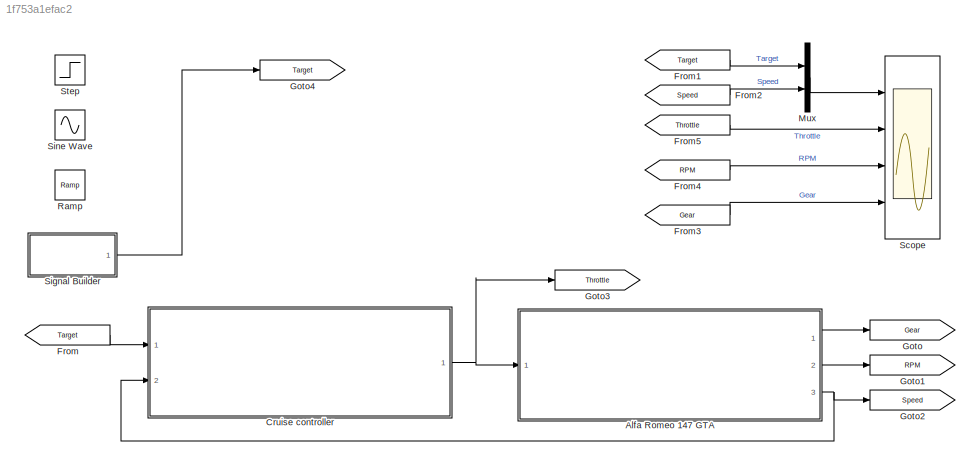
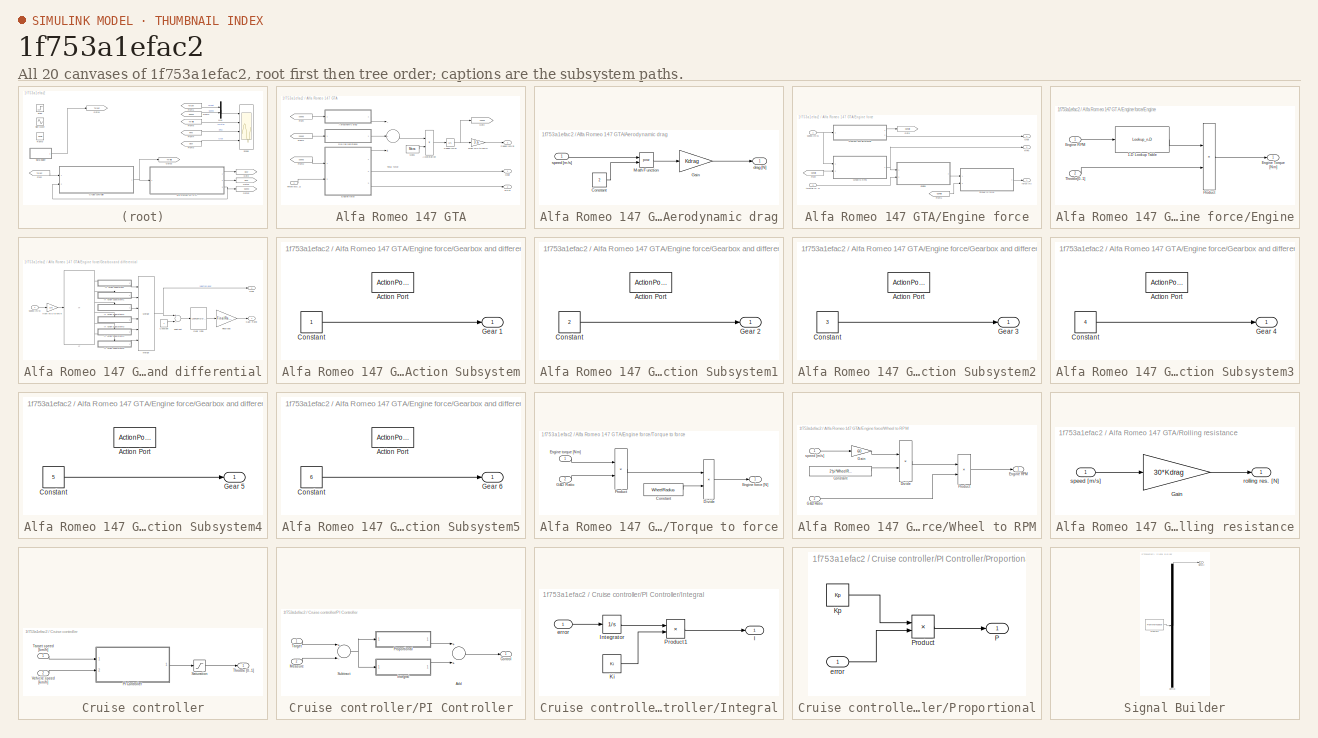
[diagram: thumbnail index - all 20 canvases of the model, root first then tree order]
MODEL slx_1f753a1efac2
KIND model
CONFIG PreLoadFcn = load('cruise_control_sim.mat')
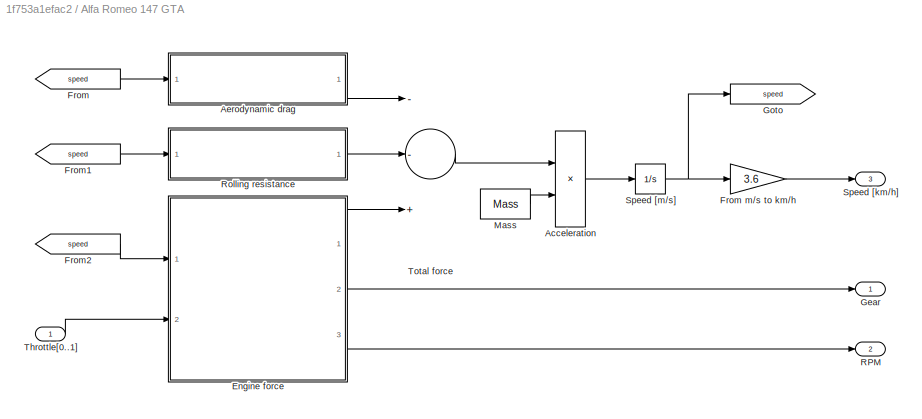
BLOCK [SubSystem] Alfa Romeo 147 GTA
  FunctionWithSeparateData = off
  MaskHideContents = off
  MinAlgLoopOccurrences = off
  Opaque = off
  Ports = [1, 3]
  PropExecContextOutsideSubsystem = off
  RTWSystemCode = Auto
  RequestExecContextInheritance = off
BLOCK [Product] Alfa Romeo 147 GTA/Acceleration
  InputSameDT = off
  Inputs = */
  OutDataTypeStr = Inherit: Inherit via internal rule
  Ports = [2, 1]
  RndMeth = Floor
  SaturateOnIntegerOverflow = off
BLOCK [SubSystem] Alfa Romeo 147 GTA/Aerodynamic drag
  FunctionWithSeparateData = off
  MaskHideContents = off
  MinAlgLoopOccurrences = off
  Opaque = off
  Ports = [1, 1]
  PropExecContextOutsideSubsystem = off
  RTWSystemCode = Auto
  RequestExecContextInheritance = off
BLOCK [Constant] Alfa Romeo 147 GTA/Aerodynamic drag/Constant
  Value = 2
BLOCK [Gain] Alfa Romeo 147 GTA/Aerodynamic drag/Gain
  Gain = Kdrag
  OutDataTypeStr = Inherit: Inherit via internal rule
  ParamDataTypeStr = Inherit: Inherit via internal rule
  SaturateOnIntegerOverflow = off
BLOCK [Math] Alfa Romeo 147 GTA/Aerodynamic drag/Math Function
  Operator = pow
  Ports = [2, 1]
BLOCK [Outport] Alfa Romeo 147 GTA/Aerodynamic drag/drag [N]
  IconDisplay = Port number
BLOCK [Inport] Alfa Romeo 147 GTA/Aerodynamic drag/speed [m//s]
  IconDisplay = Port number
BLOCK [SubSystem] Alfa Romeo 147 GTA/Engine force
  FunctionWithSeparateData = off
  MaskHideContents = off
  MinAlgLoopOccurrences = off
  Opaque = off
  Ports = [2, 3]
  PropExecContextOutsideSubsystem = off
  RTWSystemCode = Auto
  RequestExecContextInheritance = off
BLOCK [SubSystem] Alfa Romeo 147 GTA/Engine force/Engine
  FunctionWithSeparateData = off
  MaskHideContents = off
  MinAlgLoopOccurrences = off
  Opaque = off
  Ports = [2, 1]
  PropExecContextOutsideSubsystem = off
  RTWSystemCode = Auto
  RequestExecContextInheritance = off
BLOCK [Lookup_n-D] Alfa Romeo 147 GTA/Engine force/Engine/1-D Lookup Table
  BreakpointsForDimension1 = EngineRPM
  InterpMethod = Cubic spline
  NumberOfTableDimensions = 1
  Ports = [1, 1]
  RndMeth = Simplest
  Table = EngineTRQ
BLOCK [Inport] Alfa Romeo 147 GTA/Engine force/Engine/Engine RPM
  IconDisplay = Port number
BLOCK [Outport] Alfa Romeo 147 GTA/Engine force/Engine/Engine Torque [Nm]
  IconDisplay = Port number
BLOCK [Product] Alfa Romeo 147 GTA/Engine force/Engine/Product
  InputSameDT = off
  OutDataTypeStr = Inherit: Inherit via internal rule
  Ports = [2, 1]
  RndMeth = Floor
  SaturateOnIntegerOverflow = off
BLOCK [Inport] Alfa Romeo 147 GTA/Engine force/Engine/Throttle[0..1]
  IconDisplay = Port number
  Port = 2
BLOCK [From] Alfa Romeo 147 GTA/Engine force/From
  GotoTag = GDRatio
BLOCK [From] Alfa Romeo 147 GTA/Engine force/From1
  GotoTag = GDRatio
BLOCK [Outport] Alfa Romeo 147 GTA/Engine force/Gear
  IconDisplay = Port number
  Port = 2
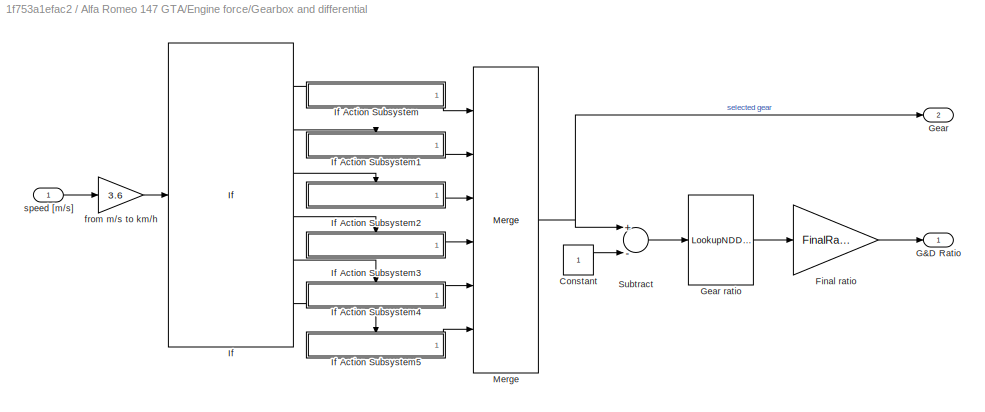
BLOCK [SubSystem] Alfa Romeo 147 GTA/Engine force/Gearbox and differential
  FunctionWithSeparateData = off
  MaskHideContents = off
  MinAlgLoopOccurrences = off
  Opaque = off
  Ports = [1, 2]
  PropExecContextOutsideSubsystem = off
  RTWSystemCode = Auto
  RequestExecContextInheritance = off
BLOCK [Constant] Alfa Romeo 147 GTA/Engine force/Gearbox and differential/Constant
BLOCK [Gain] Alfa Romeo 147 GTA/Engine force/Gearbox and differential/Final ratio
  Gain = FinalRatio
  OutDataTypeStr = Inherit: Inherit via internal rule
  ParamDataTypeStr = Inherit: Inherit via internal rule
  SaturateOnIntegerOverflow = off
BLOCK [Outport] Alfa Romeo 147 GTA/Engine force/Gearbox and differential/G&D Ratio
  IconDisplay = Port number
BLOCK [Outport] Alfa Romeo 147 GTA/Engine force/Gearbox and differential/Gear
  IconDisplay = Port number
  Port = 2
BLOCK [LookupNDDirect] Alfa Romeo 147 GTA/Engine force/Gearbox and differential/Gear ratio
  NumberOfTableDimensions = 1
  Ports = [1, 1]
  Table = GearRatio
BLOCK [If] Alfa Romeo 147 GTA/Engine force/Gearbox and differential/If
  ElseIfExpressions = u1 < 60, u1 < 86, u1 < 110, u1 < 130
  IfExpression = u1 < 39
  Ports = [1, 6]
BLOCK [SubSystem] Alfa Romeo 147 GTA/Engine force/Gearbox and differential/If Action Subsystem
  FunctionWithSeparateData = off
  MaskHideContents = off
  MinAlgLoopOccurrences = off
  Opaque = off
  Ports = [0, 1, 0, 0, 0, 0, 0, 1]
  PropExecContextOutsideSubsystem = off
  RTWSystemCode = Auto
  RequestExecContextInheritance = off
  TreatAsAtomicUnit = on
BLOCK [ActionPort] Alfa Romeo 147 GTA/Engine force/Gearbox and differential/If Action Subsystem/Action Port
  ActionType = then
BLOCK [Constant] Alfa Romeo 147 GTA/Engine force/Gearbox and differential/If Action Subsystem/Constant
BLOCK [Outport] Alfa Romeo 147 GTA/Engine force/Gearbox and differential/If Action Subsystem/Gear 1
  IconDisplay = Port number
  InitialOutput = 1
BLOCK [SubSystem] Alfa Romeo 147 GTA/Engine force/Gearbox and differential/If Action Subsystem1
  FunctionWithSeparateData = off
  MaskHideContents = off
  MinAlgLoopOccurrences = off
  Opaque = off
  Ports = [0, 1, 0, 0, 0, 0, 0, 1]
  PropExecContextOutsideSubsystem = off
  RTWSystemCode = Auto
  RequestExecContextInheritance = off
  TreatAsAtomicUnit = on
BLOCK [ActionPort] Alfa Romeo 147 GTA/Engine force/Gearbox and differential/If Action Subsystem1/Action Port
  ActionType = elseif
BLOCK [Constant] Alfa Romeo 147 GTA/Engine force/Gearbox and differential/If Action Subsystem1/Constant
  Value = 2
BLOCK [Outport] Alfa Romeo 147 GTA/Engine force/Gearbox and differential/If Action Subsystem1/Gear 2
  IconDisplay = Port number
  InitialOutput = 2
BLOCK [SubSystem] Alfa Romeo 147 GTA/Engine force/Gearbox and differential/If Action Subsystem2
  FunctionWithSeparateData = off
  MaskHideContents = off
  MinAlgLoopOccurrences = off
  Opaque = off
  Ports = [0, 1, 0, 0, 0, 0, 0, 1]
  PropExecContextOutsideSubsystem = off
  RTWSystemCode = Auto
  RequestExecContextInheritance = off
  TreatAsAtomicUnit = on
BLOCK [ActionPort] Alfa Romeo 147 GTA/Engine force/Gearbox and differential/If Action Subsystem2/Action Port
  ActionType = elseif
BLOCK [Constant] Alfa Romeo 147 GTA/Engine force/Gearbox and differential/If Action Subsystem2/Constant
  Value = 3
BLOCK [Outport] Alfa Romeo 147 GTA/Engine force/Gearbox and differential/If Action Subsystem2/Gear 3
  IconDisplay = Port number
  InitialOutput = 3
BLOCK [SubSystem] Alfa Romeo 147 GTA/Engine force/Gearbox and differential/If Action Subsystem3
  FunctionWithSeparateData = off
  MaskHideContents = off
  MinAlgLoopOccurrences = off
  Opaque = off
  Ports = [0, 1, 0, 0, 0, 0, 0, 1]
  PropExecContextOutsideSubsystem = off
  RTWSystemCode = Auto
  RequestExecContextInheritance = off
  TreatAsAtomicUnit = on
BLOCK [ActionPort] Alfa Romeo 147 GTA/Engine force/Gearbox and differential/If Action Subsystem3/Action Port
  ActionType = elseif
BLOCK [Constant] Alfa Romeo 147 GTA/Engine force/Gearbox and differential/If Action Subsystem3/Constant
  Value = 4
BLOCK [Outport] Alfa Romeo 147 GTA/Engine force/Gearbox and differential/If Action Subsystem3/Gear 4
  IconDisplay = Port number
  InitialOutput = 4
BLOCK [SubSystem] Alfa Romeo 147 GTA/Engine force/Gearbox and differential/If Action Subsystem4
  FunctionWithSeparateData = off
  MaskHideContents = off
  MinAlgLoopOccurrences = off
  Opaque = off
  Ports = [0, 1, 0, 0, 0, 0, 0, 1]
  PropExecContextOutsideSubsystem = off
  RTWSystemCode = Auto
  RequestExecContextInheritance = off
  TreatAsAtomicUnit = on
BLOCK [ActionPort] Alfa Romeo 147 GTA/Engine force/Gearbox and differential/If Action Subsystem4/Action Port
  ActionType = elseif
BLOCK [Constant] Alfa Romeo 147 GTA/Engine force/Gearbox and differential/If Action Subsystem4/Constant
  Value = 5
BLOCK [Outport] Alfa Romeo 147 GTA/Engine force/Gearbox and differential/If Action Subsystem4/Gear 5
  IconDisplay = Port number
  InitialOutput = 5
BLOCK [SubSystem] Alfa Romeo 147 GTA/Engine force/Gearbox and differential/If Action Subsystem5
  FunctionWithSeparateData = off
  MaskHideContents = off
  MinAlgLoopOccurrences = off
  Opaque = off
  Ports = [0, 1, 0, 0, 0, 0, 0, 1]
  PropExecContextOutsideSubsystem = off
  RTWSystemCode = Auto
  RequestExecContextInheritance = off
  TreatAsAtomicUnit = on
BLOCK [ActionPort] Alfa Romeo 147 GTA/Engine force/Gearbox and differential/If Action Subsystem5/Action Port
  ActionType = else
BLOCK [Constant] Alfa Romeo 147 GTA/Engine force/Gearbox and differential/If Action Subsystem5/Constant
  Value = 6
BLOCK [Outport] Alfa Romeo 147 GTA/Engine force/Gearbox and differential/If Action Subsystem5/Gear 6
  IconDisplay = Port number
  InitialOutput = 6
BLOCK [Merge] Alfa Romeo 147 GTA/Engine force/Gearbox and differential/Merge
  Inputs = 6
  Ports = [6, 1]
BLOCK [Sum] Alfa Romeo 147 GTA/Engine force/Gearbox and differential/Subtract
  InputSameDT = off
  Inputs = +-
  OutDataTypeStr = Inherit: Inherit via internal rule
  Ports = [2, 1]
  SaturateOnIntegerOverflow = off
BLOCK [Gain] Alfa Romeo 147 GTA/Engine force/Gearbox and differential/from m//s to km//h
  Gain = 3.6
  OutDataTypeStr = Inherit: Inherit via internal rule
  ParamDataTypeStr = Inherit: Inherit via internal rule
  SaturateOnIntegerOverflow = off
BLOCK [Inport] Alfa Romeo 147 GTA/Engine force/Gearbox and differential/speed [m//s]
  IconDisplay = Port number
BLOCK [Goto] Alfa Romeo 147 GTA/Engine force/Goto
  GotoTag = GDRatio
BLOCK [Outport] Alfa Romeo 147 GTA/Engine force/RPM
  IconDisplay = Port number
  Port = 3
BLOCK [SubSystem] Alfa Romeo 147 GTA/Engine force/Torque to force
  FunctionWithSeparateData = off
  MaskHideContents = off
  MinAlgLoopOccurrences = off
  Opaque = off
  Ports = [2, 1]
  PropExecContextOutsideSubsystem = off
  RTWSystemCode = Auto
  RequestExecContextInheritance = off
BLOCK [Constant] Alfa Romeo 147 GTA/Engine force/Torque to force/Constant
  Value = WheelRadius
BLOCK [Product] Alfa Romeo 147 GTA/Engine force/Torque to force/Divide
  InputSameDT = off
  Inputs = */
  OutDataTypeStr = Inherit: Inherit via internal rule
  Ports = [2, 1]
  RndMeth = Floor
  SaturateOnIntegerOverflow = off
BLOCK [Outport] Alfa Romeo 147 GTA/Engine force/Torque to force/Engine force [N]
  IconDisplay = Port number
BLOCK [Inport] Alfa Romeo 147 GTA/Engine force/Torque to force/Engine torque [Nm]
  IconDisplay = Port number
BLOCK [Inport] Alfa Romeo 147 GTA/Engine force/Torque to force/G&D Ratio
  IconDisplay = Port number
  Port = 2
BLOCK [Product] Alfa Romeo 147 GTA/Engine force/Torque to force/Product
  InputSameDT = off
  OutDataTypeStr = Inherit: Inherit via internal rule
  Ports = [2, 1]
  RndMeth = Floor
  SaturateOnIntegerOverflow = off
BLOCK [SubSystem] Alfa Romeo 147 GTA/Engine force/Wheel to RPM
  FunctionWithSeparateData = off
  MaskHideContents = off
  MinAlgLoopOccurrences = off
  Opaque = off
  Ports = [2, 1]
  PropExecContextOutsideSubsystem = off
  RTWSystemCode = Auto
  RequestExecContextInheritance = off
BLOCK [Constant] Alfa Romeo 147 GTA/Engine force/Wheel to RPM/Constant
  Value = 2*pi*WheelRadius
BLOCK [Product] Alfa Romeo 147 GTA/Engine force/Wheel to RPM/Divide
  InputSameDT = off
  Inputs = */
  OutDataTypeStr = Inherit: Inherit via internal rule
  Ports = [2, 1]
  RndMeth = Floor
  SaturateOnIntegerOverflow = off
BLOCK [Outport] Alfa Romeo 147 GTA/Engine force/Wheel to RPM/Engine RPM
  IconDisplay = Port number
BLOCK [Inport] Alfa Romeo 147 GTA/Engine force/Wheel to RPM/G&D Ratio
  IconDisplay = Port number
  Port = 2
BLOCK [Gain] Alfa Romeo 147 GTA/Engine force/Wheel to RPM/Gain
  Gain = 60
  OutDataTypeStr = Inherit: Inherit via internal rule
  ParamDataTypeStr = Inherit: Inherit via internal rule
  SaturateOnIntegerOverflow = off
BLOCK [Product] Alfa Romeo 147 GTA/Engine force/Wheel to RPM/Product
  InputSameDT = off
  OutDataTypeStr = Inherit: Inherit via internal rule
  Ports = [2, 1]
  RndMeth = Floor
  SaturateOnIntegerOverflow = off
BLOCK [Inport] Alfa Romeo 147 GTA/Engine force/Wheel to RPM/speed [m//s]
  IconDisplay = Port number
BLOCK [Outport] Alfa Romeo 147 GTA/Engine force/force [N]
  IconDisplay = Port number
BLOCK [Inport] Alfa Romeo 147 GTA/Engine force/speed [m//s]
  IconDisplay = Port number
BLOCK [Inport] Alfa Romeo 147 GTA/Engine force/throttle [0..1]
  IconDisplay = Port number
  Port = 2
BLOCK [From] Alfa Romeo 147 GTA/From
  GotoTag = speed
BLOCK [Gain] Alfa Romeo 147 GTA/From m//s to km//h
  Gain = 3.6
  OutDataTypeStr = Inherit: Inherit via internal rule
  ParamDataTypeStr = Inherit: Inherit via internal rule
  SaturateOnIntegerOverflow = off
BLOCK [From] Alfa Romeo 147 GTA/From1
  GotoTag = speed
BLOCK [From] Alfa Romeo 147 GTA/From2
  GotoTag = speed
BLOCK [Outport] Alfa Romeo 147 GTA/Gear
  IconDisplay = Port number
BLOCK [Goto] Alfa Romeo 147 GTA/Goto
  GotoTag = speed
BLOCK [Constant] Alfa Romeo 147 GTA/Mass
  Value = Mass
BLOCK [Outport] Alfa Romeo 147 GTA/RPM
  IconDisplay = Port number
  Port = 2
BLOCK [SubSystem] Alfa Romeo 147 GTA/Rolling resistance
  FunctionWithSeparateData = off
  MaskHideContents = off
  MinAlgLoopOccurrences = off
  Opaque = off
  Ports = [1, 1]
  PropExecContextOutsideSubsystem = off
  RTWSystemCode = Auto
  RequestExecContextInheritance = off
BLOCK [Gain] Alfa Romeo 147 GTA/Rolling resistance/Gain
  Gain = 30*Kdrag
  OutDataTypeStr = Inherit: Inherit via internal rule
  ParamDataTypeStr = Inherit: Inherit via internal rule
  SaturateOnIntegerOverflow = off
BLOCK [Outport] Alfa Romeo 147 GTA/Rolling resistance/rolling res. [N]
  IconDisplay = Port number
BLOCK [Inport] Alfa Romeo 147 GTA/Rolling resistance/speed [m//s]
  IconDisplay = Port number
BLOCK [Outport] Alfa Romeo 147 GTA/Speed [km//h]
  IconDisplay = Port number
  Port = 3
BLOCK [Integrator] Alfa Romeo 147 GTA/Speed [m//s]
  Ports = [1, 1]
BLOCK [Inport] Alfa Romeo 147 GTA/Throttle[0..1]
  IconDisplay = Port number
BLOCK [Sum] Alfa Romeo 147 GTA/Total force
  InputSameDT = off
  Inputs = --+
  OutDataTypeStr = Inherit: Inherit via internal rule
  Ports = [3, 1]
  SaturateOnIntegerOverflow = off
BLOCK [SubSystem] Cruise controller
  FunctionWithSeparateData = off
  MaskHideContents = off
  MinAlgLoopOccurrences = off
  Opaque = off
  Ports = [2, 1]
  PropExecContextOutsideSubsystem = off
  RTWSystemCode = Auto
  RequestExecContextInheritance = off
BLOCK [SubSystem] Cruise controller/PI Controller
  FunctionWithSeparateData = off
  MaskHideContents = off
  MinAlgLoopOccurrences = off
  Opaque = off
  Ports = [2, 1]
  PropExecContextOutsideSubsystem = off
  RTWSystemCode = Auto
  RequestExecContextInheritance = off
BLOCK [Sum] Cruise controller/PI Controller/Add
  InputSameDT = off
  OutDataTypeStr = Inherit: Inherit via internal rule
  Ports = [2, 1]
  SaturateOnIntegerOverflow = off
BLOCK [Outport] Cruise controller/PI Controller/Control
  IconDisplay = Port number
BLOCK [SubSystem] Cruise controller/PI Controller/Integral
  FunctionWithSeparateData = off
  MaskHideContents = off
  MinAlgLoopOccurrences = off
  Opaque = off
  Ports = [1, 1]
  PropExecContextOutsideSubsystem = off
  RTWSystemCode = Auto
  RequestExecContextInheritance = off
BLOCK [Outport] Cruise controller/PI Controller/Integral/I
  IconDisplay = Port number
BLOCK [Integrator] Cruise controller/PI Controller/Integral/Integrator
  Ports = [1, 1]
BLOCK [Constant] Cruise controller/PI Controller/Integral/Ki
  Value = Ki
BLOCK [Product] Cruise controller/PI Controller/Integral/Product1
  InputSameDT = off
  OutDataTypeStr = Inherit: Inherit via internal rule
  Ports = [2, 1]
  RndMeth = Floor
  SaturateOnIntegerOverflow = off
BLOCK [Inport] Cruise controller/PI Controller/Integral/error
  IconDisplay = Port number
BLOCK [Inport] Cruise controller/PI Controller/Measure
  IconDisplay = Port number
  Port = 2
BLOCK [SubSystem] Cruise controller/PI Controller/Proportional
  FunctionWithSeparateData = off
  MaskHideContents = off
  MinAlgLoopOccurrences = off
  Opaque = off
  Ports = [1, 1]
  PropExecContextOutsideSubsystem = off
  RTWSystemCode = Auto
  RequestExecContextInheritance = off
BLOCK [Constant] Cruise controller/PI Controller/Proportional/Kp
  Value = Kp
BLOCK [Outport] Cruise controller/PI Controller/Proportional/P
  IconDisplay = Port number
BLOCK [Product] Cruise controller/PI Controller/Proportional/Product
  InputSameDT = off
  OutDataTypeStr = Inherit: Inherit via internal rule
  Ports = [2, 1]
  RndMeth = Floor
  SaturateOnIntegerOverflow = off
BLOCK [Inport] Cruise controller/PI Controller/Proportional/error
  IconDisplay = Port number
BLOCK [Sum] Cruise controller/PI Controller/Subtract
  InputSameDT = off
  Inputs = +-
  OutDataTypeStr = Inherit: Inherit via internal rule
  Ports = [2, 1]
  SaturateOnIntegerOverflow = off
BLOCK [Inport] Cruise controller/PI Controller/Target
  IconDisplay = Port number
BLOCK [Saturate] Cruise controller/Saturation
  InputPortMap = u0
  LowerLimit = 0
  Ports = [1, 1]
  UpperLimit = 1
BLOCK [Inport] Cruise controller/Target speed [km//h]
  IconDisplay = Port number
BLOCK [Outport] Cruise controller/Throttle [0..1]
  IconDisplay = Port number
BLOCK [Inport] Cruise controller/Vehicle speed [km//h]
  IconDisplay = Port number
  Port = 2
BLOCK [From] From
  GotoTag = Target
BLOCK [From] From1
  GotoTag = Target
BLOCK [From] From2
  GotoTag = Speed
BLOCK [From] From3
  GotoTag = Gear
BLOCK [From] From4
  GotoTag = RPM
BLOCK [From] From5
  GotoTag = Throttle
BLOCK [Goto] Goto
  GotoTag = Gear
BLOCK [Goto] Goto1
  GotoTag = RPM
BLOCK [Goto] Goto2
  GotoTag = Speed
BLOCK [Goto] Goto3
  GotoTag = Throttle
BLOCK [Goto] Goto4
  GotoTag = Target
BLOCK [Mux] Mux
  DisplayOption = bar
  Inputs = 2
  Ports = [2, 1]
BLOCK [Reference] Ramp  REF=simulink/Sources/Ramp
  Commented = on
  Ports = [0, 1]
  SourceBlock = simulink/Sources/Ramp
  SourceType = Ramp
  VectorParams1D = on
  X0 = 0
  slope = 6
  start = 0
BLOCK [Scope] Scope
  DataFormat = StructureWithTime
  Floating = off
  LegendLocations = 0.89285     0.90369    0.075846    0.055182\n0.88601     0.69448    0.082682    0.030208\n0.89871      0.4603    0.069987    0.030208\n0.89969     0.22476     0.06901    0.030208
  LimitDataPoints = off
  NumInputPorts = 4
  Ports = [4]
  SampleTime = 0
  ShowLegends = on
  YMax = 5~5~5~5
  YMin = -5~-5~-5~-5
  ZoomMode = yonly
BLOCK [SubSystem] Signal Builder
  ClipboardFcn = sigbuilder_block('clipboard');
  CloseFcn = sigbuilder_block('close');
  ContinueFcn = sigbuilder_block('continue');
  CopyFcn = sigbuilder_block('copy');
  DeleteFcn = sigbuilder_block('delete');
  FunctionWithSeparateData = off
  LoadFcn = sigbuilder_block('load');
  MaskHideContents = on
  MinAlgLoopOccurrences = off
  ModelCloseFcn = sigbuilder_block('modelClose');
  NameChangeFcn = sigbuilder_block('namechange');
  Opaque = off
  OpenFcn = sigbuilder_block('open',[0 25.6 819.2 554.4 ]);
  PauseFcn = sigbuilder_block('pause');
  Ports = [0, 1]
  PreSaveFcn = sigbuilder_block('preSave');
  PropExecContextOutsideSubsystem = off
  RTWSystemCode = Auto
  RequestExecContextInheritance = off
  StartFcn = sigbuilder_block('start');
  StopFcn = sigbuilder_block('stop');
  Tag = STV Subsys
BLOCK [Demux] Signal Builder/Demux
  Outputs = 1
  Ports = [1, 1]
  Tag = STV Demux
BLOCK [FromWorkspace] Signal Builder/FromWs
  SampleTime = 0
  Tag = STV FromWs
  VariableName = tuvar
  ZeroCross = on
BLOCK [Outport] Signal Builder/Signal 2
  IconDisplay = Port number
  Tag = STV Outport
BLOCK [Sin] Sine Wave
  Amplitude = 20
  Bias = 100
  Commented = on
  Frequency = 0.2
  Ports = [0, 1]
  SampleTime = 0
BLOCK [Step] Step
  After = 100
  Commented = on
  SampleTime = 0
LINE Alfa Romeo 147 GTA/Acceleration:1 -> Alfa Romeo 147 GTA/Speed [m//s]:1
LINE Alfa Romeo 147 GTA/Aerodynamic drag/Constant:1 -> Alfa Romeo 147 GTA/Aerodynamic drag/Math Function:2
LINE Alfa Romeo 147 GTA/Aerodynamic drag/Gain:1 -> Alfa Romeo 147 GTA/Aerodynamic drag/drag [N]:1
LINE Alfa Romeo 147 GTA/Aerodynamic drag/Math Function:1 -> Alfa Romeo 147 GTA/Aerodynamic drag/Gain:1
LINE Alfa Romeo 147 GTA/Aerodynamic drag/speed [m//s]:1 -> Alfa Romeo 147 GTA/Aerodynamic drag/Math Function:1
LINE Alfa Romeo 147 GTA/Aerodynamic drag:1 -> Alfa Romeo 147 GTA/Total force:1
LINE Alfa Romeo 147 GTA/Engine force/Engine/1-D Lookup Table:1 -> Alfa Romeo 147 GTA/Engine force/Engine/Product:1
LINE Alfa Romeo 147 GTA/Engine force/Engine/Engine RPM:1 -> Alfa Romeo 147 GTA/Engine force/Engine/1-D Lookup Table:1
LINE Alfa Romeo 147 GTA/Engine force/Engine/Product:1 -> Alfa Romeo 147 GTA/Engine force/Engine/Engine Torque [Nm]:1
LINE Alfa Romeo 147 GTA/Engine force/Engine/Throttle[0..1]:1 -> Alfa Romeo 147 GTA/Engine force/Engine/Product:2
LINE Alfa Romeo 147 GTA/Engine force/Engine:1 -> Alfa Romeo 147 GTA/Engine force/Torque to force:1
LINE Alfa Romeo 147 GTA/Engine force/From1:1 -> Alfa Romeo 147 GTA/Engine force/Torque to force:2
LINE Alfa Romeo 147 GTA/Engine force/From:1 -> Alfa Romeo 147 GTA/Engine force/Wheel to RPM:2
LINE Alfa Romeo 147 GTA/Engine force/Gearbox and differential/Constant:1 -> Alfa Romeo 147 GTA/Engine force/Gearbox and differential/Subtract:2
LINE Alfa Romeo 147 GTA/Engine force/Gearbox and differential/Final ratio:1 -> Alfa Romeo 147 GTA/Engine force/Gearbox and differential/G&D Ratio:1
LINE Alfa Romeo 147 GTA/Engine force/Gearbox and differential/Gear ratio:1 -> Alfa Romeo 147 GTA/Engine force/Gearbox and differential/Final ratio:1
LINE Alfa Romeo 147 GTA/Engine force/Gearbox and differential/If Action Subsystem/Constant:1 -> Alfa Romeo 147 GTA/Engine force/Gearbox and differential/If Action Subsystem/Gear 1:1
LINE Alfa Romeo 147 GTA/Engine force/Gearbox and differential/If Action Subsystem1/Constant:1 -> Alfa Romeo 147 GTA/Engine force/Gearbox and differential/If Action Subsystem1/Gear 2:1
LINE Alfa Romeo 147 GTA/Engine force/Gearbox and differential/If Action Subsystem1:1 -> Alfa Romeo 147 GTA/Engine force/Gearbox and differential/Merge:2
LINE Alfa Romeo 147 GTA/Engine force/Gearbox and differential/If Action Subsystem2/Constant:1 -> Alfa Romeo 147 GTA/Engine force/Gearbox and differential/If Action Subsystem2/Gear 3:1
LINE Alfa Romeo 147 GTA/Engine force/Gearbox and differential/If Action Subsystem2:1 -> Alfa Romeo 147 GTA/Engine force/Gearbox and differential/Merge:3
LINE Alfa Romeo 147 GTA/Engine force/Gearbox and differential/If Action Subsystem3/Constant:1 -> Alfa Romeo 147 GTA/Engine force/Gearbox and differential/If Action Subsystem3/Gear 4:1
LINE Alfa Romeo 147 GTA/Engine force/Gearbox and differential/If Action Subsystem3:1 -> Alfa Romeo 147 GTA/Engine force/Gearbox and differential/Merge:4
LINE Alfa Romeo 147 GTA/Engine force/Gearbox and differential/If Action Subsystem4/Constant:1 -> Alfa Romeo 147 GTA/Engine force/Gearbox and differential/If Action Subsystem4/Gear 5:1
LINE Alfa Romeo 147 GTA/Engine force/Gearbox and differential/If Action Subsystem4:1 -> Alfa Romeo 147 GTA/Engine force/Gearbox and differential/Merge:5
LINE Alfa Romeo 147 GTA/Engine force/Gearbox and differential/If Action Subsystem5/Constant:1 -> Alfa Romeo 147 GTA/Engine force/Gearbox and differential/If Action Subsystem5/Gear 6:1
LINE Alfa Romeo 147 GTA/Engine force/Gearbox and differential/If Action Subsystem5:1 -> Alfa Romeo 147 GTA/Engine force/Gearbox and differential/Merge:6
LINE Alfa Romeo 147 GTA/Engine force/Gearbox and differential/If Action Subsystem:1 -> Alfa Romeo 147 GTA/Engine force/Gearbox and differential/Merge:1
LINE Alfa Romeo 147 GTA/Engine force/Gearbox and differential/If:1 -> Alfa Romeo 147 GTA/Engine force/Gearbox and differential/If Action Subsystem:ifaction
LINE Alfa Romeo 147 GTA/Engine force/Gearbox and differential/If:2 -> Alfa Romeo 147 GTA/Engine force/Gearbox and differential/If Action Subsystem1:ifaction
LINE Alfa Romeo 147 GTA/Engine force/Gearbox and differential/If:3 -> Alfa Romeo 147 GTA/Engine force/Gearbox and differential/If Action Subsystem2:ifaction
LINE Alfa Romeo 147 GTA/Engine force/Gearbox and differential/If:4 -> Alfa Romeo 147 GTA/Engine force/Gearbox and differential/If Action Subsystem3:ifaction
LINE Alfa Romeo 147 GTA/Engine force/Gearbox and differential/If:5 -> Alfa Romeo 147 GTA/Engine force/Gearbox and differential/If Action Subsystem4:ifaction
LINE Alfa Romeo 147 GTA/Engine force/Gearbox and differential/If:6 -> Alfa Romeo 147 GTA/Engine force/Gearbox and differential/If Action Subsystem5:ifaction
NET Alfa Romeo 147 GTA/Engine force/Gearbox and differential/Merge:1 -> Alfa Romeo 147 GTA/Engine force/Gearbox and differential/Gear:1, Alfa Romeo 147 GTA/Engine force/Gearbox and differential/Subtract:1
LINE Alfa Romeo 147 GTA/Engine force/Gearbox and differential/Subtract:1 -> Alfa Romeo 147 GTA/Engine force/Gearbox and differential/Gear ratio:1
LINE Alfa Romeo 147 GTA/Engine force/Gearbox and differential/from m//s to km//h:1 -> Alfa Romeo 147 GTA/Engine force/Gearbox and differential/If:1
LINE Alfa Romeo 147 GTA/Engine force/Gearbox and differential/speed [m//s]:1 -> Alfa Romeo 147 GTA/Engine force/Gearbox and differential/from m//s to km//h:1
LINE Alfa Romeo 147 GTA/Engine force/Gearbox and differential:1 -> Alfa Romeo 147 GTA/Engine force/Goto:1
LINE Alfa Romeo 147 GTA/Engine force/Gearbox and differential:2 -> Alfa Romeo 147 GTA/Engine force/Gear:1
LINE Alfa Romeo 147 GTA/Engine force/Torque to force/Constant:1 -> Alfa Romeo 147 GTA/Engine force/Torque to force/Divide:2
LINE Alfa Romeo 147 GTA/Engine force/Torque to force/Divide:1 -> Alfa Romeo 147 GTA/Engine force/Torque to force/Engine force [N]:1
LINE Alfa Romeo 147 GTA/Engine force/Torque to force/Engine torque [Nm]:1 -> Alfa Romeo 147 GTA/Engine force/Torque to force/Product:1
LINE Alfa Romeo 147 GTA/Engine force/Torque to force/G&D Ratio:1 -> Alfa Romeo 147 GTA/Engine force/Torque to force/Product:2
LINE Alfa Romeo 147 GTA/Engine force/Torque to force/Product:1 -> Alfa Romeo 147 GTA/Engine force/Torque to force/Divide:1
LINE Alfa Romeo 147 GTA/Engine force/Torque to force:1 -> Alfa Romeo 147 GTA/Engine force/force [N]:1
LINE Alfa Romeo 147 GTA/Engine force/Wheel to RPM/Constant:1 -> Alfa Romeo 147 GTA/Engine force/Wheel to RPM/Divide:2
LINE Alfa Romeo 147 GTA/Engine force/Wheel to RPM/Divide:1 -> Alfa Romeo 147 GTA/Engine force/Wheel to RPM/Product:1
LINE Alfa Romeo 147 GTA/Engine force/Wheel to RPM/G&D Ratio:1 -> Alfa Romeo 147 GTA/Engine force/Wheel to RPM/Product:2
LINE Alfa Romeo 147 GTA/Engine force/Wheel to RPM/Gain:1 -> Alfa Romeo 147 GTA/Engine force/Wheel to RPM/Divide:1
LINE Alfa Romeo 147 GTA/Engine force/Wheel to RPM/Product:1 -> Alfa Romeo 147 GTA/Engine force/Wheel to RPM/Engine RPM:1
LINE Alfa Romeo 147 GTA/Engine force/Wheel to RPM/speed [m//s]:1 -> Alfa Romeo 147 GTA/Engine force/Wheel to RPM/Gain:1
NET Alfa Romeo 147 GTA/Engine force/Wheel to RPM:1 -> Alfa Romeo 147 GTA/Engine force/Engine:1, Alfa Romeo 147 GTA/Engine force/RPM:1
NET Alfa Romeo 147 GTA/Engine force/speed [m//s]:1 -> Alfa Romeo 147 GTA/Engine force/Gearbox and differential:1, Alfa Romeo 147 GTA/Engine force/Wheel to RPM:1
LINE Alfa Romeo 147 GTA/Engine force/throttle [0..1]:1 -> Alfa Romeo 147 GTA/Engine force/Engine:2
LINE Alfa Romeo 147 GTA/Engine force:1 -> Alfa Romeo 147 GTA/Total force:3
LINE Alfa Romeo 147 GTA/Engine force:2 -> Alfa Romeo 147 GTA/Gear:1
LINE Alfa Romeo 147 GTA/Engine force:3 -> Alfa Romeo 147 GTA/RPM:1
LINE Alfa Romeo 147 GTA/From m//s to km//h:1 -> Alfa Romeo 147 GTA/Speed [km//h]:1
LINE Alfa Romeo 147 GTA/From1:1 -> Alfa Romeo 147 GTA/Rolling resistance:1
LINE Alfa Romeo 147 GTA/From2:1 -> Alfa Romeo 147 GTA/Engine force:1
LINE Alfa Romeo 147 GTA/From:1 -> Alfa Romeo 147 GTA/Aerodynamic drag:1
LINE Alfa Romeo 147 GTA/Mass:1 -> Alfa Romeo 147 GTA/Acceleration:2
LINE Alfa Romeo 147 GTA/Rolling resistance/Gain:1 -> Alfa Romeo 147 GTA/Rolling resistance/rolling res. [N]:1
LINE Alfa Romeo 147 GTA/Rolling resistance/speed [m//s]:1 -> Alfa Romeo 147 GTA/Rolling resistance/Gain:1
LINE Alfa Romeo 147 GTA/Rolling resistance:1 -> Alfa Romeo 147 GTA/Total force:2
NET Alfa Romeo 147 GTA/Speed [m//s]:1 -> Alfa Romeo 147 GTA/From m//s to km//h:1, Alfa Romeo 147 GTA/Goto:1
LINE Alfa Romeo 147 GTA/Throttle[0..1]:1 -> Alfa Romeo 147 GTA/Engine force:2
LINE Alfa Romeo 147 GTA/Total force:1 -> Alfa Romeo 147 GTA/Acceleration:1
LINE Alfa Romeo 147 GTA:1 -> Goto:1
LINE Alfa Romeo 147 GTA:2 -> Goto1:1
NET Alfa Romeo 147 GTA:3 -> Cruise controller:2, Goto2:1
LINE Cruise controller/PI Controller/Add:1 -> Cruise controller/PI Controller/Control:1
LINE Cruise controller/PI Controller/Integral/Integrator:1 -> Cruise controller/PI Controller/Integral/Product1:1
LINE Cruise controller/PI Controller/Integral/Ki:1 -> Cruise controller/PI Controller/Integral/Product1:2
LINE Cruise controller/PI Controller/Integral/Product1:1 -> Cruise controller/PI Controller/Integral/I:1
LINE Cruise controller/PI Controller/Integral/error:1 -> Cruise controller/PI Controller/Integral/Integrator:1
LINE Cruise controller/PI Controller/Integral:1 -> Cruise controller/PI Controller/Add:2
LINE Cruise controller/PI Controller/Measure:1 -> Cruise controller/PI Controller/Subtract:2
LINE Cruise controller/PI Controller/Proportional/Kp:1 -> Cruise controller/PI Controller/Proportional/Product:1
LINE Cruise controller/PI Controller/Proportional/Product:1 -> Cruise controller/PI Controller/Proportional/P:1
LINE Cruise controller/PI Controller/Proportional/error:1 -> Cruise controller/PI Controller/Proportional/Product:2
LINE Cruise controller/PI Controller/Proportional:1 -> Cruise controller/PI Controller/Add:1
NET Cruise controller/PI Controller/Subtract:1 -> Cruise controller/PI Controller/Integral:1, Cruise controller/PI Controller/Proportional:1
LINE Cruise controller/PI Controller/Target:1 -> Cruise controller/PI Controller/Subtract:1
LINE Cruise controller/PI Controller:1 -> Cruise controller/Saturation:1
LINE Cruise controller/Saturation:1 -> Cruise controller/Throttle [0..1]:1
LINE Cruise controller/Target speed [km//h]:1 -> Cruise controller/PI Controller:1
LINE Cruise controller/Vehicle speed [km//h]:1 -> Cruise controller/PI Controller:2
NET Cruise controller:1 -> Alfa Romeo 147 GTA:1, Goto3:1
LINE From1:1 -> Mux:1
LINE From2:1 -> Mux:2
LINE From3:1 -> Scope:4
LINE From4:1 -> Scope:3
LINE From5:1 -> Scope:2
LINE From:1 -> Cruise controller:1
LINE Mux:1 -> Scope:1
LINE Signal Builder:1 -> Goto4:1
note: NET lines group one-source signal fan-out (src -> all destinations, sorted); 1:1 wires keep LINE
